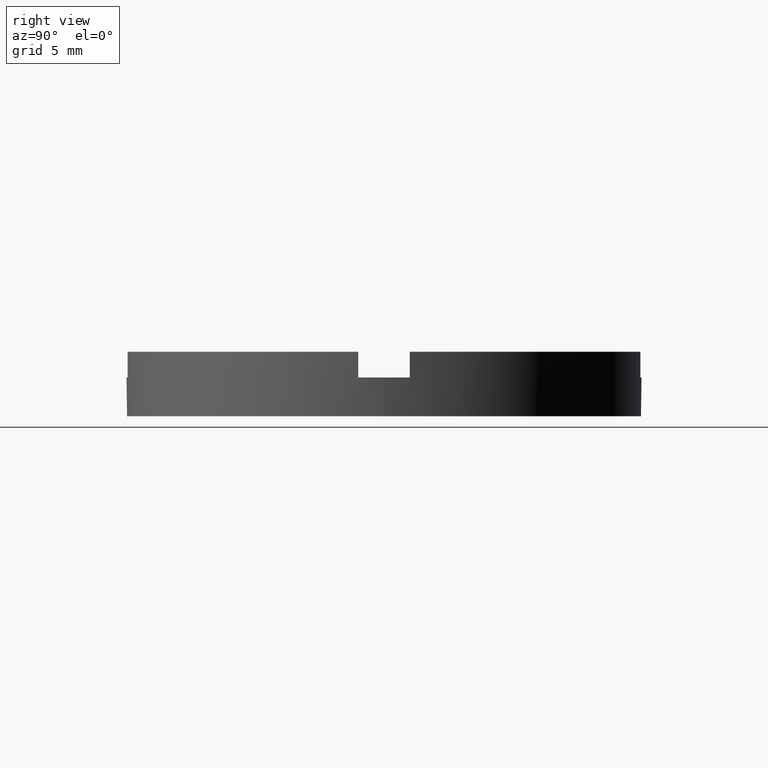
[diagram: clean part render]
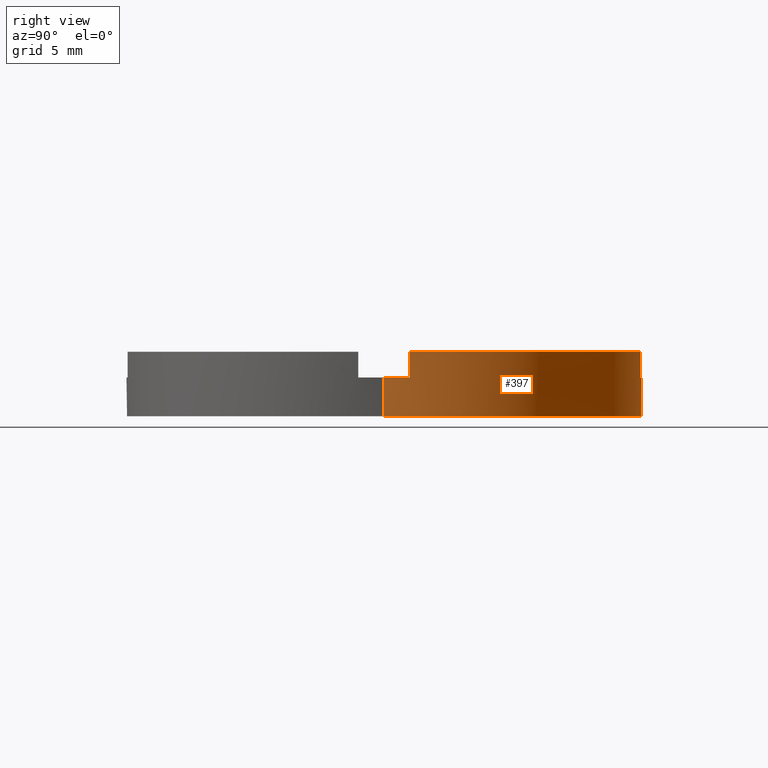
[diagram: same view with one face highlighted and labeled with its STEP entity id]
A machine part, right view. The second image highlights one B-rep face of the part: STEP entity #397.
In plain terms, the highlighted cylindrical surface (partial cylindrical patch) has radius 10 mm, axis along (-0, -0, -1).
Its self-contained STEP definition (entity closure, byte-faithful):
#5 = CYLINDRICAL_SURFACE ( 'NONE', #543, 10.00000000000000000 ) ;
#11 = AXIS2_PLACEMENT_3D ( 'NONE', #410, #569, #116 ) ;
#12 = CIRCLE ( 'NONE', #11, 10.00000000000000000 ) ;
#15 = LINE ( 'NONE', #646, #293 ) ;
#24 = LINE ( 'NONE', #771, #547 ) ;
#26 = VECTOR ( 'NONE', #185, 1000.000000000000000 ) ;
#45 = DIRECTION ( 'NONE',  ( -0.000000000000000000, -0.000000000000000000, 1.000000000000000000 ) ) ;
#53 = CARTESIAN_POINT ( 'NONE',  ( -9.949874371066195877, 1.000000000000036193, 1.500000000000000000 ) ) ;
#79 = LINE ( 'NONE', #520, #337 ) ;
#87 = CARTESIAN_POINT ( 'NONE',  ( 1.000000000000001332, 9.949874371066199430, 1.500000000000000000 ) ) ;
#89 = VERTEX_POINT ( 'NONE', #685 ) ;
#93 = EDGE_CURVE ( 'NONE', #241, #767, #323, .T. ) ;
#97 = VECTOR ( 'NONE', #783, 1000.000000000000000 ) ;
#111 = EDGE_CURVE ( 'NONE', #400, #418, #593, .T. ) ;
#112 = CARTESIAN_POINT ( 'NONE',  ( 0.000000000000000000, 0.000000000000000000, 1.500000000000000000 ) ) ;
#116 = DIRECTION ( 'NONE',  ( 1.000000000000000000, 0.000000000000000000, 0.000000000000000000 ) ) ;
#135 = ORIENTED_EDGE ( 'NONE', *, *, #111, .T. ) ;
#143 = ORIENTED_EDGE ( 'NONE', *, *, #627, .F. ) ;
#158 = CARTESIAN_POINT ( 'NONE',  ( -0.9999999999999986677, 9.949874371066199430, 2.500000000000000000 ) ) ;
#168 = DIRECTION ( 'NONE',  ( -0.000000000000000000, 0.000000000000000000, 1.000000000000000000 ) ) ;
#169 = AXIS2_PLACEMENT_3D ( 'NONE', #112, #168, #183 ) ;
#170 = ORIENTED_EDGE ( 'NONE', *, *, #756, .F. ) ;
#182 = ORIENTED_EDGE ( 'NONE', *, *, #552, .T. ) ;
#183 = DIRECTION ( 'NONE',  ( 1.000000000000000000, 0.000000000000000000, 0.000000000000000000 ) ) ;
#185 = DIRECTION ( 'NONE',  ( -0.000000000000000000, -0.000000000000000000, -1.000000000000000000 ) ) ;
#200 = DIRECTION ( 'NONE',  ( -0.000000000000000000, -0.000000000000000000, 1.000000000000000000 ) ) ;
#216 = DIRECTION ( 'NONE',  ( -0.000000000000000000, 0.000000000000000000, 1.000000000000000000 ) ) ;
#219 = EDGE_CURVE ( 'NONE', #373, #609, #336, .T. ) ;
#220 = EDGE_CURVE ( 'NONE', #647, #692, #79, .T. ) ;
#241 = VERTEX_POINT ( 'NONE', #679 ) ;
#254 = CARTESIAN_POINT ( 'NONE',  ( 0.000000000000000000, 0.000000000000000000, 2.500000000000000000 ) ) ;
#293 = VECTOR ( 'NONE', #421, 1000.000000000000000 ) ;
#298 = CIRCLE ( 'NONE', #617, 10.00000000000000000 ) ;
#323 = LINE ( 'NONE', #738, #97 ) ;
#333 = DIRECTION ( 'NONE',  ( 0.000000000000000000, 0.000000000000000000, 1.000000000000000000 ) ) ;
#336 = LINE ( 'NONE', #53, #591 ) ;
#337 = VECTOR ( 'NONE', #776, 1000.000000000000000 ) ;
#351 = EDGE_LOOP ( 'NONE', ( #674, #182, #135, #690, #725, #687, #388, #143, #454, #398, #170, #491 ) ) ;
#352 = AXIS2_PLACEMENT_3D ( 'NONE', #622, #746, #691 ) ;
#369 = CARTESIAN_POINT ( 'NONE',  ( -10.00000000000000000, 0.000000000000000000, 0.000000000000000000 ) ) ;
#371 = AXIS2_PLACEMENT_3D ( 'NONE', #757, #216, #630 ) ;
#373 = VERTEX_POINT ( 'NONE', #506 ) ;
#388 = ORIENTED_EDGE ( 'NONE', *, *, #550, .F. ) ;
#397 = ADVANCED_FACE ( 'NONE', ( #516 ), #5, .T. ) ;
#398 = ORIENTED_EDGE ( 'NONE', *, *, #220, .T. ) ;
#400 = VERTEX_POINT ( 'NONE', #616 ) ;
#402 = CARTESIAN_POINT ( 'NONE',  ( 1.000000000000001332, 9.949874371066199430, 2.500000000000000000 ) ) ;
#410 = CARTESIAN_POINT ( 'NONE',  ( 0.000000000000000000, 0.000000000000000000, 2.500000000000000000 ) ) ;
#418 = VERTEX_POINT ( 'NONE', #369 ) ;
#421 = DIRECTION ( 'NONE',  ( -0.000000000000000000, -0.000000000000000000, -1.000000000000000000 ) ) ;
#454 = ORIENTED_EDGE ( 'NONE', *, *, #734, .F. ) ;
#460 = CARTESIAN_POINT ( 'NONE',  ( -10.00000000000000000, 0.000000000000000000, 1.500000000000000000 ) ) ;
#470 = CARTESIAN_POINT ( 'NONE',  ( -0.9999999999999986677, 9.949874371066199430, 1.500000000000000000 ) ) ;
#484 = DIRECTION ( 'NONE',  ( -0.000000000000000000, -0.000000000000000000, -1.000000000000000000 ) ) ;
#488 = CARTESIAN_POINT ( 'NONE',  ( 0.000000000000000000, 0.000000000000000000, 2.500000000000000000 ) ) ;
#491 = ORIENTED_EDGE ( 'NONE', *, *, #93, .F. ) ;
#492 = DIRECTION ( 'NONE',  ( 1.000000000000000000, 0.000000000000000000, 0.000000000000000000 ) ) ;
#494 = CARTESIAN_POINT ( 'NONE',  ( 0.000000000000000000, 0.000000000000000000, 1.500000000000000000 ) ) ;
#496 = DIRECTION ( 'NONE',  ( 1.000000000000000000, 0.000000000000000000, 0.000000000000000000 ) ) ;
#499 = EDGE_CURVE ( 'NONE', #653, #418, #540, .T. ) ;
#506 = CARTESIAN_POINT ( 'NONE',  ( -9.949874371066195877, 1.000000000000036193, 1.500000000000000000 ) ) ;
#516 = FACE_OUTER_BOUND ( 'NONE', #351, .T. ) ;
#520 = CARTESIAN_POINT ( 'NONE',  ( 1.000000000000001332, 9.949874371066199430, 1.500000000000000000 ) ) ;
#523 = CIRCLE ( 'NONE', #705, 10.00000000000000000 ) ;
#536 = DIRECTION ( 'NONE',  ( -1.000000000000000000, 0.000000000000000000, 0.000000000000000000 ) ) ;
#540 = LINE ( 'NONE', #764, #26 ) ;
#543 = AXIS2_PLACEMENT_3D ( 'NONE', #254, #484, #536 ) ;
#547 = VECTOR ( 'NONE', #45, 1000.000000000000000 ) ;
#550 = EDGE_CURVE ( 'NONE', #665, #609, #12, .T. ) ;
#552 = EDGE_CURVE ( 'NONE', #89, #400, #15, .T. ) ;
#555 = CIRCLE ( 'NONE', #371, 10.00000000000000000 ) ;
#558 = CIRCLE ( 'NONE', #169, 10.00000000000000000 ) ;
#566 = CARTESIAN_POINT ( 'NONE',  ( 9.949874371066202983, 0.9999999999999615863, 2.500000000000000000 ) ) ;
#569 = DIRECTION ( 'NONE',  ( 0.000000000000000000, 0.000000000000000000, 1.000000000000000000 ) ) ;
#591 = VECTOR ( 'NONE', #200, 1000.000000000000000 ) ;
#593 = CIRCLE ( 'NONE', #352, 10.00000000000000000 ) ;
#605 = VERTEX_POINT ( 'NONE', #470 ) ;
#609 = VERTEX_POINT ( 'NONE', #727 ) ;
#616 = CARTESIAN_POINT ( 'NONE',  ( 10.00000000000000000, 1.224646799147353256E-15, 0.000000000000000000 ) ) ;
#617 = AXIS2_PLACEMENT_3D ( 'NONE', #488, #333, #496 ) ;
#622 = CARTESIAN_POINT ( 'NONE',  ( 0.000000000000000000, 0.000000000000000000, 0.000000000000000000 ) ) ;
#627 = EDGE_CURVE ( 'NONE', #605, #665, #24, .T. ) ;
#630 = DIRECTION ( 'NONE',  ( 1.000000000000000000, 0.000000000000000000, 0.000000000000000000 ) ) ;
#646 = CARTESIAN_POINT ( 'NONE',  ( 10.00000000000000000, 1.224646799147353256E-15, 2.500000000000000000 ) ) ;
#647 = VERTEX_POINT ( 'NONE', #87 ) ;
#653 = VERTEX_POINT ( 'NONE', #460 ) ;
#665 = VERTEX_POINT ( 'NONE', #158 ) ;
#674 = ORIENTED_EDGE ( 'NONE', *, *, #740, .F. ) ;
#679 = CARTESIAN_POINT ( 'NONE',  ( 9.949874371066202983, 0.9999999999999615863, 1.500000000000000000 ) ) ;
#685 = CARTESIAN_POINT ( 'NONE',  ( 10.00000000000000000, 1.224646799147353256E-15, 1.500000000000000000 ) ) ;
#687 = ORIENTED_EDGE ( 'NONE', *, *, #219, .T. ) ;
#689 = EDGE_CURVE ( 'NONE', #373, #653, #523, .T. ) ;
#690 = ORIENTED_EDGE ( 'NONE', *, *, #499, .F. ) ;
#691 = DIRECTION ( 'NONE',  ( 1.000000000000000000, 0.000000000000000000, 0.000000000000000000 ) ) ;
#692 = VERTEX_POINT ( 'NONE', #402 ) ;
#705 = AXIS2_PLACEMENT_3D ( 'NONE', #494, #748, #492 ) ;
#725 = ORIENTED_EDGE ( 'NONE', *, *, #689, .F. ) ;
#727 = CARTESIAN_POINT ( 'NONE',  ( -9.949874371066195877, 1.000000000000036193, 2.500000000000000000 ) ) ;
#734 = EDGE_CURVE ( 'NONE', #647, #605, #558, .T. ) ;
#738 = CARTESIAN_POINT ( 'NONE',  ( 9.949874371066202983, 0.9999999999999615863, 1.500000000000000000 ) ) ;
#740 = EDGE_CURVE ( 'NONE', #89, #241, #555, .T. ) ;
#746 = DIRECTION ( 'NONE',  ( 0.000000000000000000, 0.000000000000000000, 1.000000000000000000 ) ) ;
#748 = DIRECTION ( 'NONE',  ( -0.000000000000000000, 0.000000000000000000, 1.000000000000000000 ) ) ;
#756 = EDGE_CURVE ( 'NONE', #767, #692, #298, .T. ) ;
#757 = CARTESIAN_POINT ( 'NONE',  ( 0.000000000000000000, 0.000000000000000000, 1.500000000000000000 ) ) ;
#764 = CARTESIAN_POINT ( 'NONE',  ( -10.00000000000000000, 0.000000000000000000, 2.500000000000000000 ) ) ;
#767 = VERTEX_POINT ( 'NONE', #566 ) ;
#771 = CARTESIAN_POINT ( 'NONE',  ( -0.9999999999999986677, 9.949874371066199430, 1.500000000000000000 ) ) ;
#776 = DIRECTION ( 'NONE',  ( -0.000000000000000000, -0.000000000000000000, 1.000000000000000000 ) ) ;
#783 = DIRECTION ( 'NONE',  ( -0.000000000000000000, -0.000000000000000000, 1.000000000000000000 ) ) ;